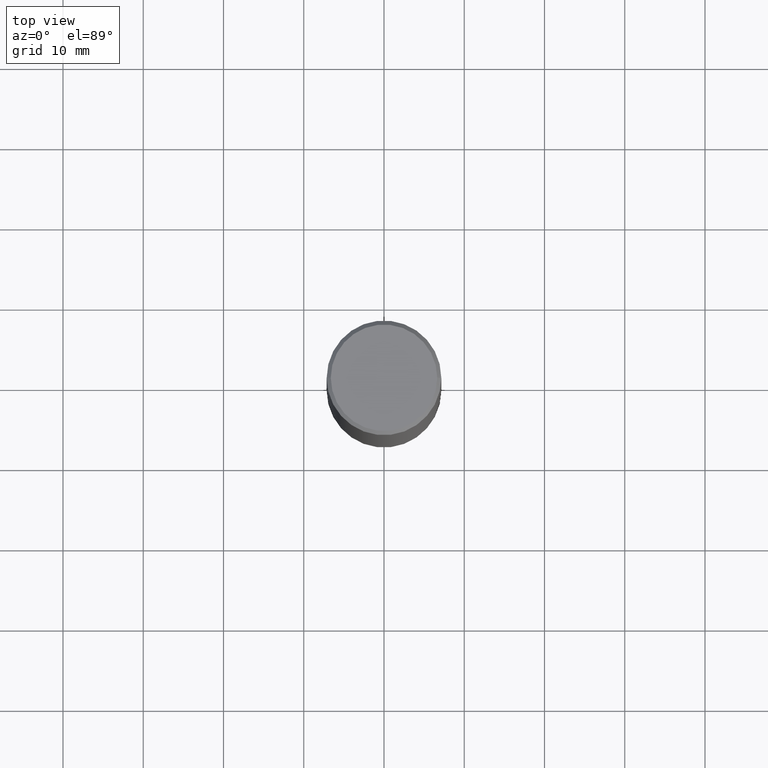
[diagram: clean part render]
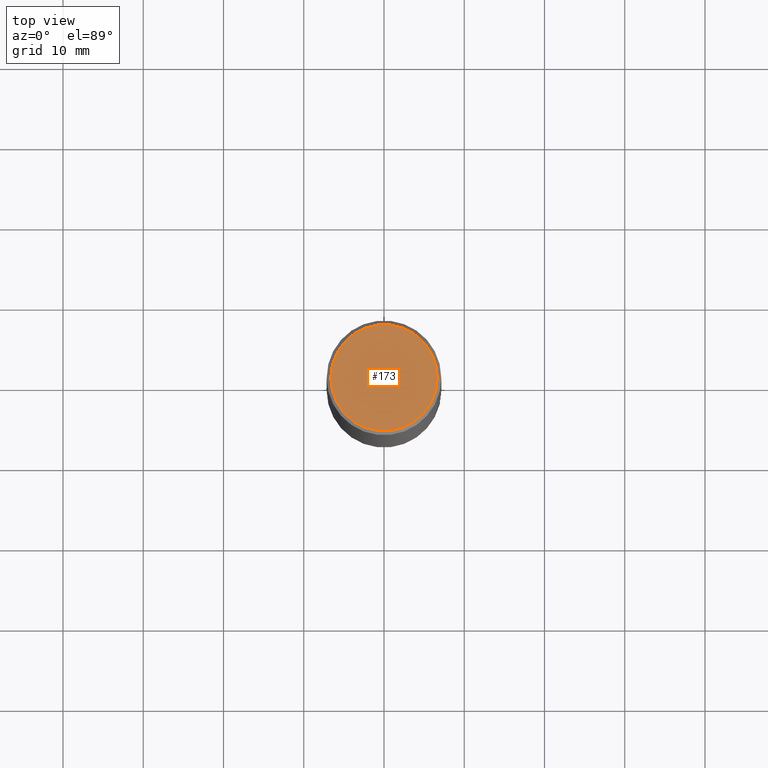
[diagram: same view with one face highlighted and labeled with its STEP entity id]
A machine part, top view. The second image highlights one B-rep face of the part: STEP entity #173.
In plain terms, the highlighted planar face has unit normal (0, -0, -1).
Its self-contained STEP definition (entity closure, byte-faithful):
#13 = DIRECTION ( 'NONE',  ( -2.445468806185136597E-29, 3.491481338843145583E-15, 1.000000000000000000 ) ) ;
#34 = DIRECTION ( 'NONE',  ( -2.445468806185136597E-29, 3.491481338843145583E-15, 1.000000000000000000 ) ) ;
#36 = AXIS2_PLACEMENT_3D ( 'NONE', #152, #13, #201 ) ;
#47 = EDGE_LOOP ( 'NONE', ( #74, #82 ) ) ;
#69 = CARTESIAN_POINT ( 'NONE',  ( -0.2612499999999995937, 1.859213812933965593E-15, -1.288019758893701069E-29 ) ) ;
#74 = ORIENTED_EDGE ( 'NONE', *, *, #153, .T. ) ;
#82 = ORIENTED_EDGE ( 'NONE', *, *, #272, .T. ) ;
#84 = FACE_OUTER_BOUND ( 'NONE', #47, .T. ) ;
#112 = CARTESIAN_POINT ( 'NONE',  ( 0.000000000000000000, 0.000000000000000000, 0.000000000000000000 ) ) ;
#113 = DIRECTION ( 'NONE',  ( 2.438088387897960049E-29, -3.491481338843145188E-15, -1.000000000000000000 ) ) ;
#114 = CIRCLE ( 'NONE', #205, 0.2612499999999995937 ) ;
#152 = CARTESIAN_POINT ( 'NONE',  ( 0.000000000000000000, 0.000000000000000000, 0.000000000000000000 ) ) ;
#153 = EDGE_CURVE ( 'NONE', #192, #361, #114, .T. ) ;
#173 = ADVANCED_FACE ( 'NONE', ( #84 ), #195, .F. ) ;
#192 = VERTEX_POINT ( 'NONE', #69 ) ;
#195 = PLANE ( 'NONE',  #249 ) ;
#201 = DIRECTION ( 'NONE',  ( 1.000000000000000000, -6.982962677686266711E-15, 4.876176775795935793E-29 ) ) ;
#205 = AXIS2_PLACEMENT_3D ( 'NONE', #112, #34, #338 ) ;
#249 = AXIS2_PLACEMENT_3D ( 'NONE', #314, #113, #315 ) ;
#265 = CIRCLE ( 'NONE', #36, 0.2612499999999995937 ) ;
#272 = EDGE_CURVE ( 'NONE', #361, #192, #265, .T. ) ;
#314 = CARTESIAN_POINT ( 'NONE',  ( 1.824298999545534338E-15, 0.2612499999999995937, -9.121494997727705218E-16 ) ) ;
#315 = DIRECTION ( 'NONE',  ( -1.000000000000000000, 6.982962677686265922E-15, -4.876176775795935793E-29 ) ) ;
#338 = DIRECTION ( 'NONE',  ( 1.000000000000000000, -6.982962677686266711E-15, 4.876176775795935793E-29 ) ) ;
#361 = VERTEX_POINT ( 'NONE', #362 ) ;
#362 = CARTESIAN_POINT ( 'NONE',  ( 0.2612499999999995937, -1.895824895283956809E-15, 1.300802449975685690E-29 ) ) ;